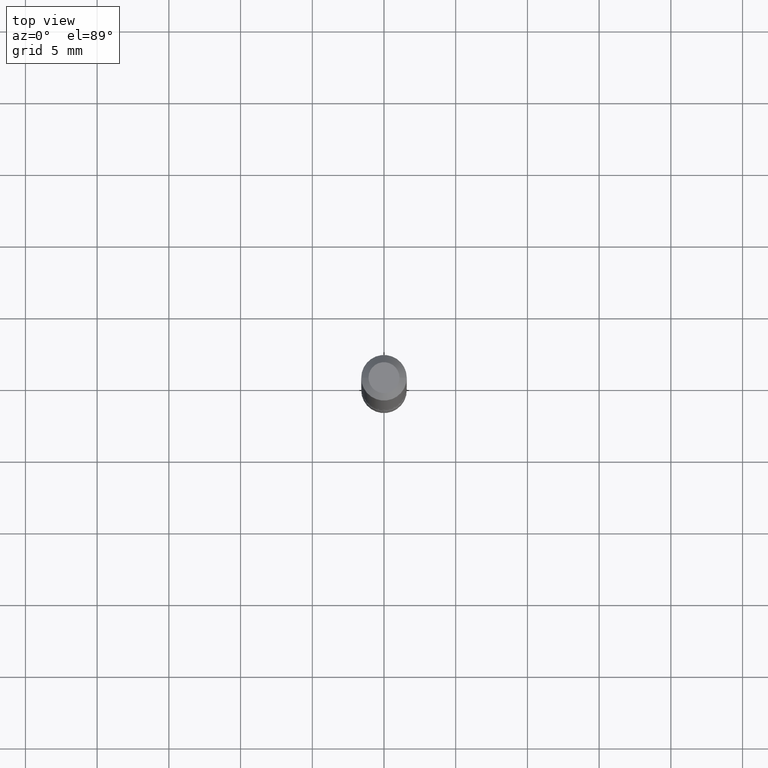
[diagram: clean part render]
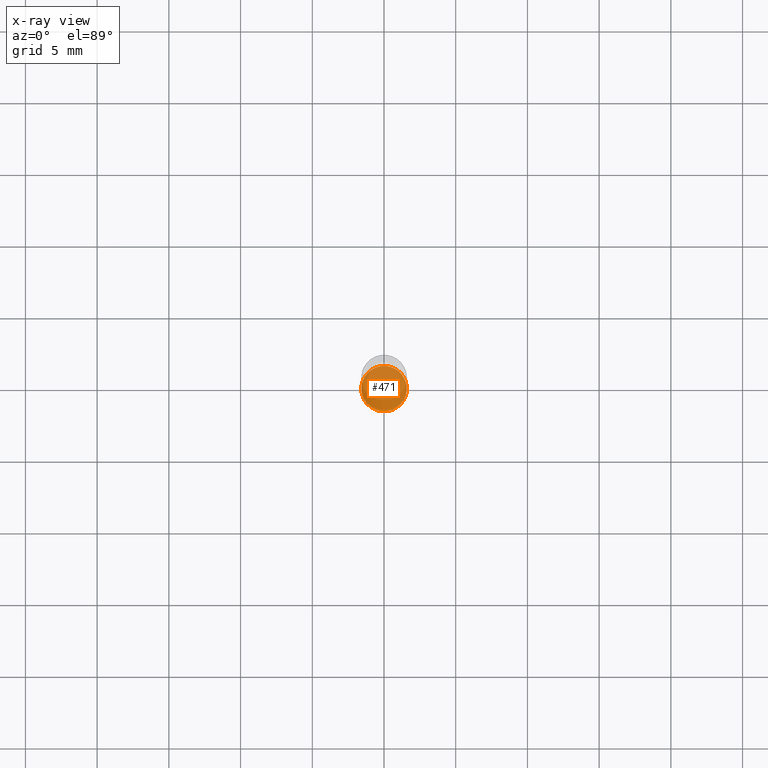
[diagram: x-ray — body ghosted, one internal face saturated and labeled with its STEP entity id]
A machine part, top view, then the same camera in x-ray: the body is ghosted and one INTERNAL B-rep face — a face not visible from any outside direction — is saturated and labeled: STEP entity #471.
In plain terms, the highlighted planar face has unit normal (0, -0, -1).
Its self-contained STEP definition (entity closure, byte-faithful):
#2 = AXIS2_PLACEMENT_3D ( 'NONE', #503, #286, #391 ) ;
#66 = EDGE_CURVE ( 'NONE', #418, #95, #99, .T. ) ;
#95 = VERTEX_POINT ( 'NONE', #217 ) ;
#99 = CIRCLE ( 'NONE', #422, 0.06250000000000062450 ) ;
#103 = DIRECTION ( 'NONE',  ( 2.438088387897960049E-29, -3.491481338843145188E-15, -1.000000000000000000 ) ) ;
#110 = ORIENTED_EDGE ( 'NONE', *, *, #459, .T. ) ;
#155 = ORIENTED_EDGE ( 'NONE', *, *, #66, .T. ) ;
#162 = PLANE ( 'NONE',  #276 ) ;
#217 = CARTESIAN_POINT ( 'NONE',  ( 0.06250000000000062450, -6.546527510330897918E-15, -1.749999999999999112 ) ) ;
#257 = DIRECTION ( 'NONE',  ( 1.000000000000000000, -6.982962677686271444E-15, 0.000000000000000000 ) ) ;
#276 = AXIS2_PLACEMENT_3D ( 'NONE', #488, #103, #284 ) ;
#284 = DIRECTION ( 'NONE',  ( -1.000000000000000000, 6.982962677686265922E-15, -4.876176775795935793E-29 ) ) ;
#286 = DIRECTION ( 'NONE',  ( -2.445468806185136597E-29, 3.491481338843145583E-15, 1.000000000000000000 ) ) ;
#357 = DIRECTION ( 'NONE',  ( -2.445468806185136597E-29, 3.491481338843145583E-15, 1.000000000000000000 ) ) ;
#370 = CIRCLE ( 'NONE', #2, 0.06250000000000062450 ) ;
#391 = DIRECTION ( 'NONE',  ( 1.000000000000000000, -6.982962677686271444E-15, 0.000000000000000000 ) ) ;
#408 = EDGE_LOOP ( 'NONE', ( #110, #155 ) ) ;
#418 = VERTEX_POINT ( 'NONE', #437 ) ;
#422 = AXIS2_PLACEMENT_3D ( 'NONE', #470, #357, #257 ) ;
#437 = CARTESIAN_POINT ( 'NONE',  ( -0.06250000000000062450, -6.084980893786609222E-15, -1.749999999999999112 ) ) ;
#449 = FACE_OUTER_BOUND ( 'NONE', #408, .T. ) ;
#459 = EDGE_CURVE ( 'NONE', #95, #418, #370, .T. ) ;
#470 = CARTESIAN_POINT ( 'NONE',  ( 4.279570410823987363E-29, -6.110092342975501516E-15, -1.749999999999999112 ) ) ;
#471 = ADVANCED_FACE ( 'NONE', ( #449 ), #162, .F. ) ;
#488 = CARTESIAN_POINT ( 'NONE',  ( -6.403209434462905426E-29, -2.140844110749520751E-14, -1.749999999999998890 ) ) ;
#503 = CARTESIAN_POINT ( 'NONE',  ( 4.279570410823987363E-29, -6.110092342975501516E-15, -1.749999999999999112 ) ) ;